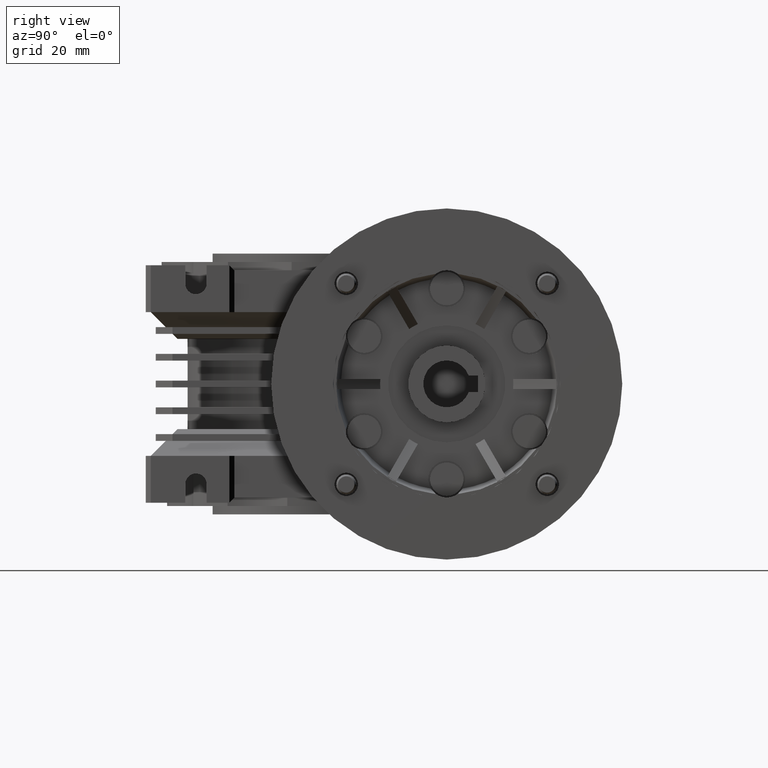
[diagram: clean part render]
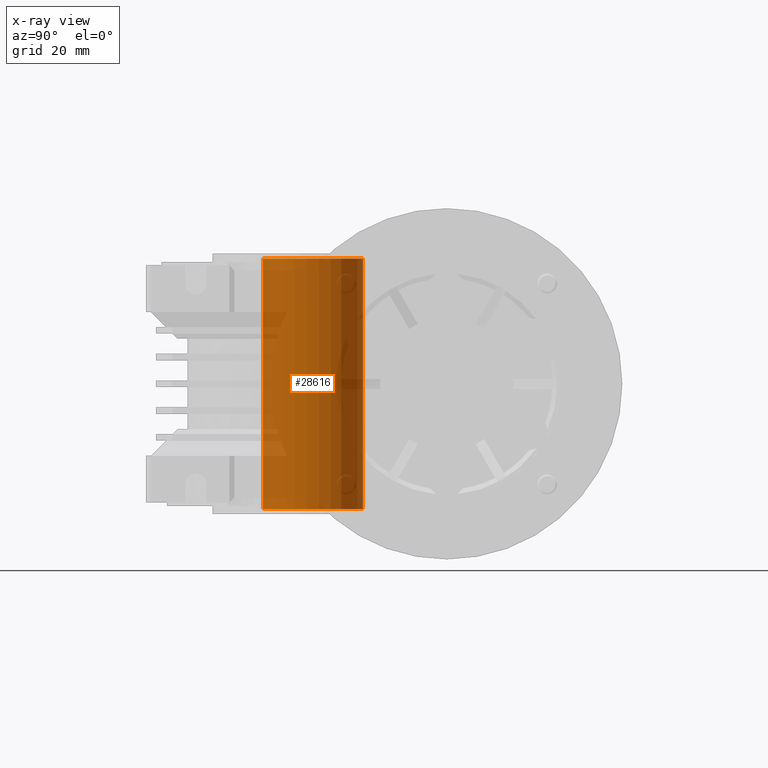
[diagram: x-ray — body ghosted, one internal face saturated and labeled with its STEP entity id]
A machine part, right view, then the same camera in x-ray: the body is ghosted and one INTERNAL B-rep face — a face not visible from any outside direction — is saturated and labeled: STEP entity #28616.
In plain terms, the highlighted cylindrical surface (partial cylindrical patch) has radius 15 mm, axis along (0, 0, 1).
Its self-contained STEP definition (entity closure, byte-faithful):
#243 = CARTESIAN_POINT ( 'NONE',  ( 0.000000000000000000, 0.000000000000000000, 37.50000000000000000 ) ) ;
#1338 = EDGE_CURVE ( 'NONE', #27278, #21160, #15945, .T. ) ;
#2534 = VECTOR ( 'NONE', #23617, 1000.000000000000000 ) ;
#2693 = EDGE_CURVE ( 'NONE', #10595, #27278, #28023, .T. ) ;
#2938 = VECTOR ( 'NONE', #11322, 1000.000000000000000 ) ;
#3719 = LINE ( 'NONE', #13890, #2534 ) ;
#3802 = AXIS2_PLACEMENT_3D ( 'NONE', #30481, #18409, #16232 ) ;
#6135 = ORIENTED_EDGE ( 'NONE', *, *, #2693, .F. ) ;
#6280 = ORIENTED_EDGE ( 'NONE', *, *, #7316, .T. ) ;
#7316 = EDGE_CURVE ( 'NONE', #10595, #10690, #3719, .T. ) ;
#9533 = DIRECTION ( 'NONE',  ( 0.000000000000000000, 1.000000000000000000, 0.000000000000000000 ) ) ;
#9684 = DIRECTION ( 'NONE',  ( 0.000000000000000000, 0.000000000000000000, -1.000000000000000000 ) ) ;
#10595 = VERTEX_POINT ( 'NONE', #27350 ) ;
#10690 = VERTEX_POINT ( 'NONE', #26358 ) ;
#10964 = DIRECTION ( 'NONE',  ( 0.000000000000000000, 0.000000000000000000, 1.000000000000000000 ) ) ;
#11322 = DIRECTION ( 'NONE',  ( 0.000000000000000000, 0.000000000000000000, 1.000000000000000000 ) ) ;
#13268 = CYLINDRICAL_SURFACE ( 'NONE', #23219, 15.00000000000000000 ) ;
#13631 = CARTESIAN_POINT ( 'NONE',  ( 0.000000000000000000, 15.00000000000000000, -39.00000000000000000 ) ) ;
#13890 = CARTESIAN_POINT ( 'NONE',  ( -1.836970198721029589E-15, -15.00000000000000000, -39.00000000000000000 ) ) ;
#15580 = CARTESIAN_POINT ( 'NONE',  ( 0.000000000000000000, 0.000000000000000000, -39.00000000000000000 ) ) ;
#15737 = CARTESIAN_POINT ( 'NONE',  ( 0.000000000000000000, 15.00000000000000000, 37.50000000000000000 ) ) ;
#15945 = LINE ( 'NONE', #13631, #2938 ) ;
#16232 = DIRECTION ( 'NONE',  ( 0.000000000000000000, 1.000000000000000000, 0.000000000000000000 ) ) ;
#17518 = EDGE_LOOP ( 'NONE', ( #6135, #6280, #28497, #20681 ) ) ;
#18038 = FACE_OUTER_BOUND ( 'NONE', #17518, .T. ) ;
#18409 = DIRECTION ( 'NONE',  ( 0.000000000000000000, 0.000000000000000000, 1.000000000000000000 ) ) ;
#19487 = CARTESIAN_POINT ( 'NONE',  ( 0.000000000000000000, 15.00000000000000000, -37.50000000000000000 ) ) ;
#20681 = ORIENTED_EDGE ( 'NONE', *, *, #1338, .F. ) ;
#21160 = VERTEX_POINT ( 'NONE', #15737 ) ;
#21288 = EDGE_CURVE ( 'NONE', #21160, #10690, #22513, .T. ) ;
#22513 = CIRCLE ( 'NONE', #26462, 15.00000000000000000 ) ;
#23219 = AXIS2_PLACEMENT_3D ( 'NONE', #15580, #10964, #27671 ) ;
#23617 = DIRECTION ( 'NONE',  ( 0.000000000000000000, 0.000000000000000000, 1.000000000000000000 ) ) ;
#26358 = CARTESIAN_POINT ( 'NONE',  ( -1.836970198721029589E-15, -15.00000000000000000, 37.50000000000000000 ) ) ;
#26462 = AXIS2_PLACEMENT_3D ( 'NONE', #243, #9684, #9533 ) ;
#27278 = VERTEX_POINT ( 'NONE', #19487 ) ;
#27350 = CARTESIAN_POINT ( 'NONE',  ( -1.836970198721029589E-15, -15.00000000000000000, -37.50000000000000000 ) ) ;
#27671 = DIRECTION ( 'NONE',  ( 0.000000000000000000, 1.000000000000000000, 0.000000000000000000 ) ) ;
#28023 = CIRCLE ( 'NONE', #3802, 15.00000000000000000 ) ;
#28497 = ORIENTED_EDGE ( 'NONE', *, *, #21288, .F. ) ;
#28616 = ADVANCED_FACE ( 'NONE', ( #18038 ), #13268, .F. ) ;
#30481 = CARTESIAN_POINT ( 'NONE',  ( 0.000000000000000000, 0.000000000000000000, -37.50000000000000000 ) ) ;